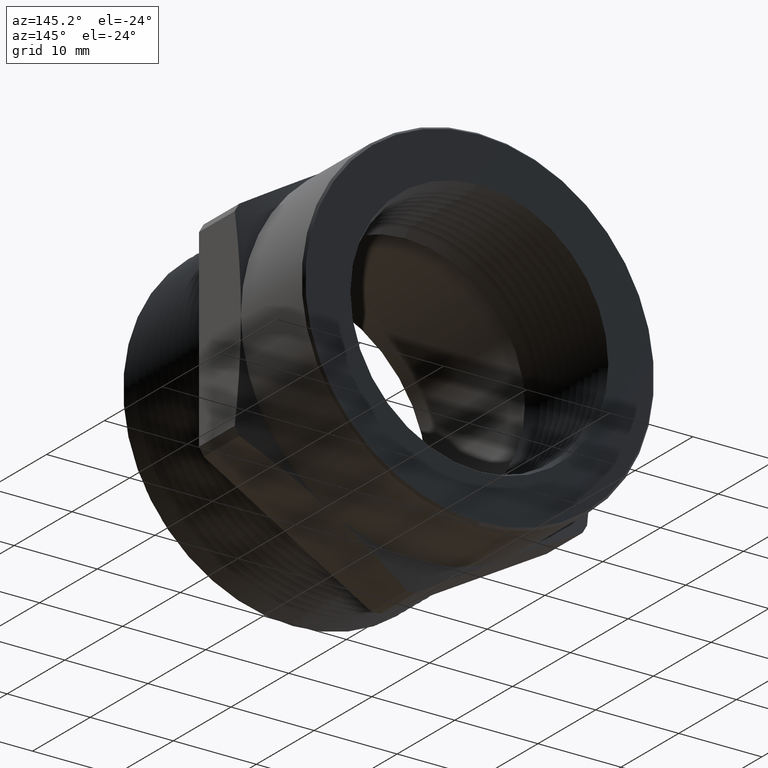
[diagram: clean part render]
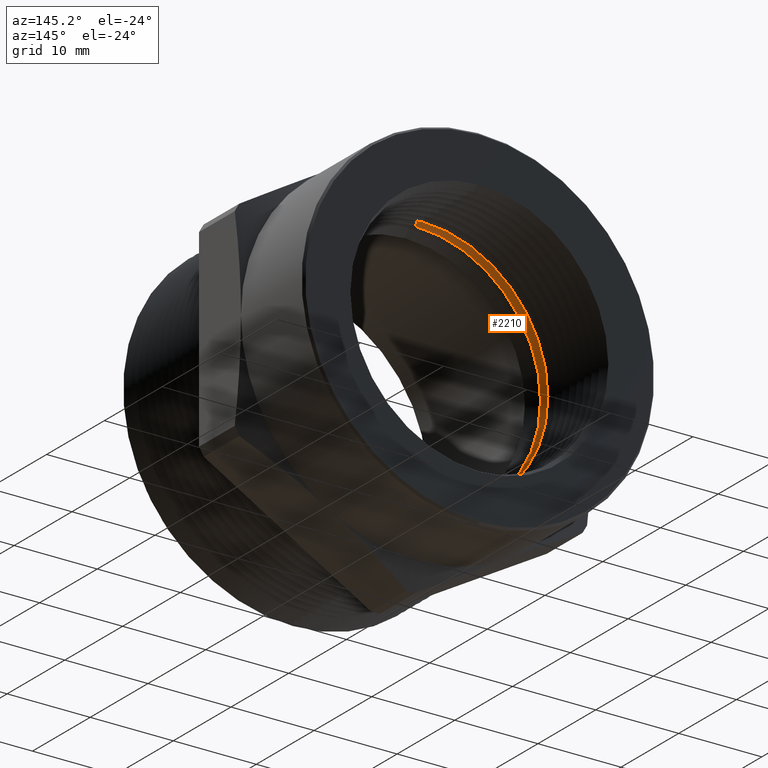
[diagram: same view with one face highlighted and labeled with its STEP entity id]
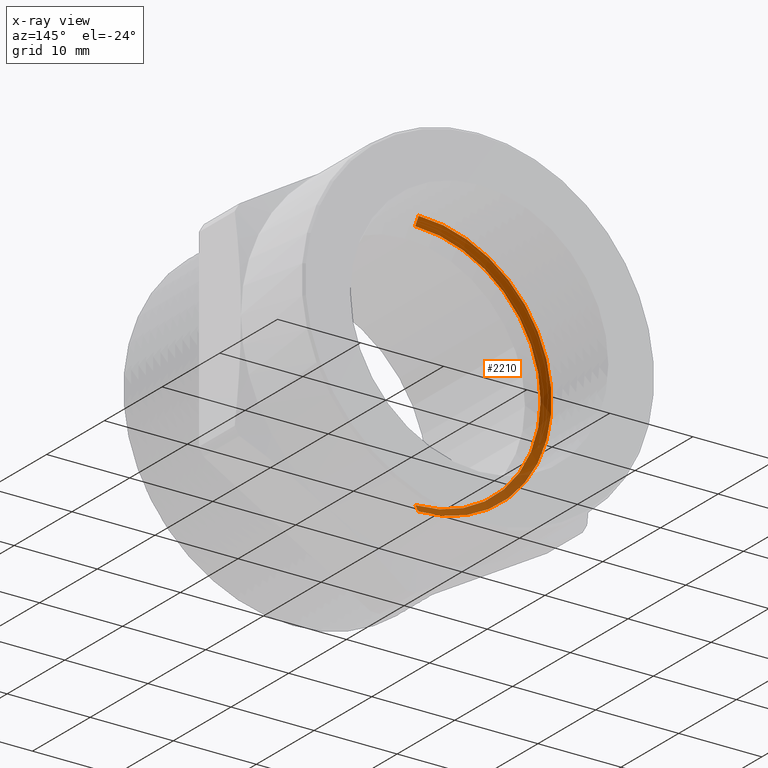
[diagram: x-ray of the same camera — body ghosted, the highlighted face saturated]
A machine part, auxiliary view. The second image highlights one B-rep face of the part: STEP entity #2210.
The next image is the same camera in x-ray: the body ghosted, the highlighted face saturated — about 22% of this face is hidden behind the body in this view.
In plain terms, the highlighted conical surface has half-angle 56.5 deg.
Its self-contained STEP definition (entity closure, byte-faithful):
#394 = CARTESIAN_POINT ( 'NONE',  ( 7.496875979949420300E-017, 0.8626670841402783700, 0.5943327602977507300 ) ) ;
#395 = DIRECTION ( 'NONE',  ( 0.0000000000000000000, 0.0000000000000000000, 1.000000000000000000 ) ) ;
#396 = DIRECTION ( 'NONE',  ( 0.0000000000000000000, 1.000000000000000000, 0.0000000000000000000 ) ) ;
#397 = CARTESIAN_POINT ( 'NONE',  ( 0.0000000000000000000, 0.8626670841402783700, 0.0000000000000000000 ) ) ;
#398 = AXIS2_PLACEMENT_3D ( 'NONE', #397, #396, #395 ) ;
#399 = CIRCLE ( 'NONE', #398, 0.5943327602977507300 ) ;
#400 = DIRECTION ( 'NONE',  ( 0.0000000000000000000, 0.0000000000000000000, 1.000000000000000000 ) ) ;
#401 = DIRECTION ( 'NONE',  ( 0.0000000000000000000, 1.000000000000000000, 0.0000000000000000000 ) ) ;
#402 = CARTESIAN_POINT ( 'NONE',  ( 0.0000000000000000000, 0.8862747151069030300, 0.0000000000000000000 ) ) ;
#403 = AXIS2_PLACEMENT_3D ( 'NONE', #402, #401, #400 ) ;
#404 = CARTESIAN_POINT ( 'NONE',  ( 0.0000000000000000000, 0.8626670841402783700, -0.5943327602977507300 ) ) ;
#405 = CONICAL_SURFACE ( 'NONE', #403, 0.6300000000000000000, 0.9861110273767897900 ) ;
#406 = FACE_OUTER_BOUND ( 'NONE', #2211, .T. ) ;
#407 = DIRECTION ( 'NONE',  ( 1.021215602848912200E-016, 0.5519369853120633700, -0.8338858220671645500 ) ) ;
#408 = VECTOR ( 'NONE', #407, 39.37007874015748900 ) ;
#409 = CARTESIAN_POINT ( 'NONE',  ( 7.715274834628325400E-017, 0.8862747151069030300, -0.6300000000000000000 ) ) ;
#410 = LINE ( 'NONE', #409, #408 ) ;
#411 = CARTESIAN_POINT ( 'NONE',  ( 7.715274834628324100E-017, 0.8862747151069030300, 0.6300000000000000000 ) ) ;
#412 = CARTESIAN_POINT ( 'NONE',  ( 0.0000000000000000000, 0.8862747151069030300, -0.6300000000000000000 ) ) ;
#413 = DIRECTION ( 'NONE',  ( 0.0000000000000000000, 0.5519369853120633700, 0.8338858220671645500 ) ) ;
#414 = VECTOR ( 'NONE', #413, 39.37007874015748900 ) ;
#415 = CARTESIAN_POINT ( 'NONE',  ( 0.0000000000000000000, 0.8862747151069030300, 0.6300000000000000000 ) ) ;
#416 = LINE ( 'NONE', #415, #414 ) ;
#484 = DIRECTION ( 'NONE',  ( 0.0000000000000000000, 0.0000000000000000000, -1.000000000000000000 ) ) ;
#485 = DIRECTION ( 'NONE',  ( -0.0000000000000000000, -1.000000000000000000, -0.0000000000000000000 ) ) ;
#486 = CARTESIAN_POINT ( 'NONE',  ( 0.0000000000000000000, 0.8862747151069030300, 0.0000000000000000000 ) ) ;
#487 = AXIS2_PLACEMENT_3D ( 'NONE', #486, #485, #484 ) ;
#488 = CIRCLE ( 'NONE', #487, 0.6300000000000000000 ) ;
#2203 = ORIENTED_EDGE ( 'NONE', *, *, #2204, .F. ) ;
#2204 = EDGE_CURVE ( 'NONE', #2215, #2207, #416, .T. ) ;
#2205 = VERTEX_POINT ( 'NONE', #412 ) ;
#2206 = ORIENTED_EDGE ( 'NONE', *, *, #2263, .F. ) ;
#2207 = VERTEX_POINT ( 'NONE', #411 ) ;
#2208 = ORIENTED_EDGE ( 'NONE', *, *, #2209, .T. ) ;
#2209 = EDGE_CURVE ( 'NONE', #2212, #2205, #410, .T. ) ;
#2210 = ADVANCED_FACE ( 'NONE', ( #406 ), #405, .F. ) ;
#2211 = EDGE_LOOP ( 'NONE', ( #2213, #2208, #2206, #2203 ) ) ;
#2212 = VERTEX_POINT ( 'NONE', #404 ) ;
#2213 = ORIENTED_EDGE ( 'NONE', *, *, #2214, .F. ) ;
#2214 = EDGE_CURVE ( 'NONE', #2212, #2215, #399, .T. ) ;
#2215 = VERTEX_POINT ( 'NONE', #394 ) ;
#2263 = EDGE_CURVE ( 'NONE', #2207, #2205, #488, .T. ) ;